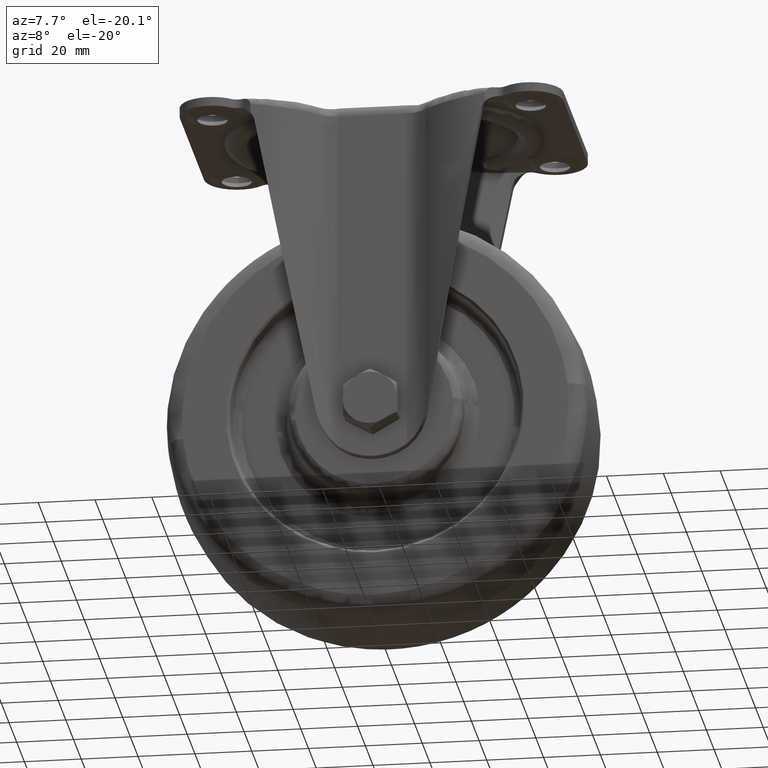
[diagram: clean part render]
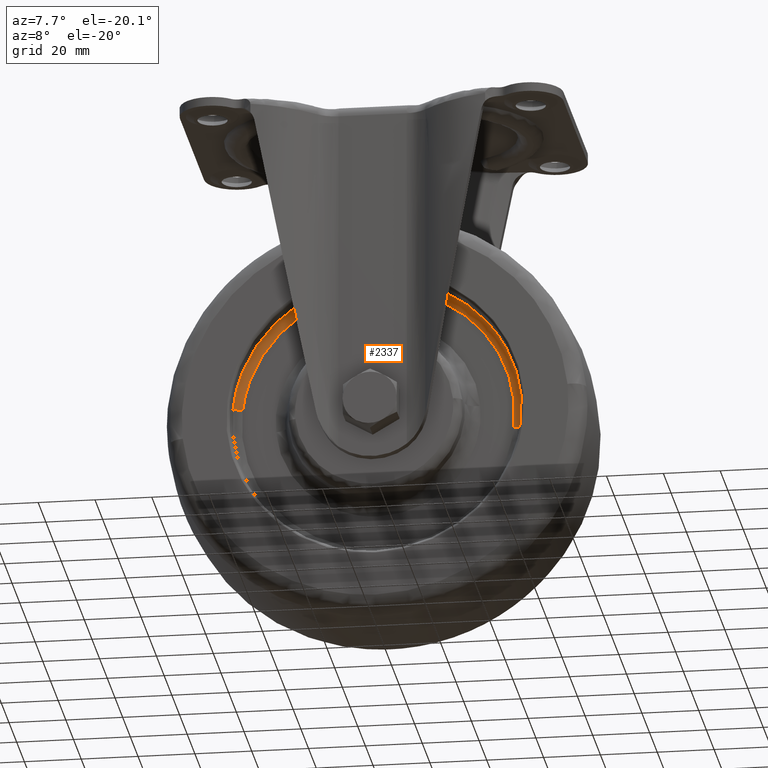
[diagram: same view with one face highlighted and labeled with its STEP entity id]
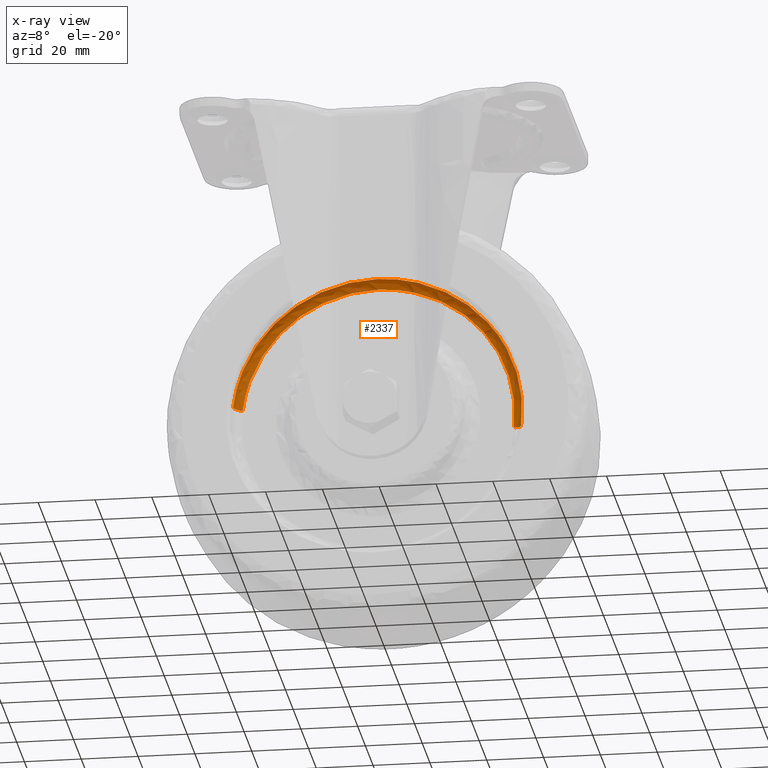
[diagram: x-ray of the same camera — body ghosted, the highlighted face saturated]
A machine part, auxiliary view. The second image highlights one B-rep face of the part: STEP entity #2337.
The next image is the same camera in x-ray: the body ghosted, the highlighted face saturated — about 0% of this face is hidden behind the body in this view.
In plain terms, the highlighted face is a freeform B-spline surface patch.
Its self-contained STEP definition (entity closure, byte-faithful):
#2016=CARTESIAN_POINT('',(38.781317866123182,-17.217746209239099,-78.877625453724022));
#2017=VERTEX_POINT('',#2016);
#2023=CARTESIAN_POINT('',(50.674978645418683,-17.217746208980561,-117.755766699625800));
#2024=VERTEX_POINT('',#2023);
#2025=CARTESIAN_POINT('',(50.674978645418676,-17.217746208980561,-117.755766699625840));
#2026=CARTESIAN_POINT('',(51.000806964344221,-17.217746208994033,-114.887105760911650));
#2027=CARTESIAN_POINT('',(51.000806964345429,-17.217746209009121,-111.999999999995000));
#2028=CARTESIAN_POINT('',(51.000806964353281,-17.217746209107428,-93.184808962524400));
#2029=CARTESIAN_POINT('',(38.781317866123167,-17.217746209239092,-78.877625453724022));
#2037=(BOUNDED_CURVE()B_SPLINE_CURVE(2,(#2025,#2026,#2027,#2028,#2029),.UNSPECIFIED.,.F.,.U.)B_SPLINE_CURVE_WITH_KNOTS((3,2,3),(0.230444236556647,0.250000000000000,0.363143161349320),.UNSPECIFIED.)CURVE()GEOMETRIC_REPRESENTATION_ITEM()RATIONAL_B_SPLINE_CURVE((0.957762333073472,0.977088997994887,1.0,0.867444541142671,0.854871031639166))REPRESENTATION_ITEM(''));
#2038=EDGE_CURVE('',#2024,#2017,#2037,.T.);
#2074=CARTESIAN_POINT('',(-50.674978645418683,-17.217746208980561,-106.244233300374200));
#2075=VERTEX_POINT('',#2074);
#2091=CARTESIAN_POINT('',(0.0,-17.217746209512299,-60.999193035606901));
#2092=VERTEX_POINT('',#2091);
#2093=CARTESIAN_POINT('',(0.0,-17.217746209512299,-60.999193035606901));
#2094=CARTESIAN_POINT('',(-45.535955343601813,-17.217746209246442,-60.999193035609728));
#2095=CARTESIAN_POINT('',(-50.674978645418676,-17.217746208980561,-106.244233300374150));
#2103=(BOUNDED_CURVE()B_SPLINE_CURVE(2,(#2093,#2094,#2095),.UNSPECIFIED.,.F.,.U.)B_SPLINE_CURVE_WITH_KNOTS((3,3),(0.500000000000000,0.730444236556647),.UNSPECIFIED.)CURVE()GEOMETRIC_REPRESENTATION_ITEM()RATIONAL_B_SPLINE_CURVE((1.0,0.730017783191660,0.957762333073472))REPRESENTATION_ITEM(''));
#2104=EDGE_CURVE('',#2092,#2075,#2103,.T.);
#2106=CARTESIAN_POINT('',(38.781317866123167,-17.217746209239092,-78.877625453724022));
#2107=CARTESIAN_POINT('',(23.511694051473199,-17.217746209403124,-60.999193035607043));
#2108=CARTESIAN_POINT('',(0.0,-17.217746209512299,-60.999193035606901));
#2116=(BOUNDED_CURVE()B_SPLINE_CURVE(2,(#2106,#2107,#2108),.UNSPECIFIED.,.F.,.U.)B_SPLINE_CURVE_WITH_KNOTS((3,3),(0.363143161349320,0.500000000000000),.UNSPECIFIED.)CURVE()GEOMETRIC_REPRESENTATION_ITEM()RATIONAL_B_SPLINE_CURVE((0.854871031639166,0.839662240043876,1.0))REPRESENTATION_ITEM(''));
#2117=EDGE_CURVE('',#2017,#2092,#2116,.T.);
#2249=CARTESIAN_POINT('',(47.509492396721946,-14.506617217207429,-117.396224360874190));
#2250=CARTESIAN_POINT('',(52.905716757596160,-14.506617217207427,-69.886731964152276));
#2251=CARTESIAN_POINT('',(5.396224360874210,-14.506617217207429,-64.490507603278061));
#2252=CARTESIAN_POINT('',(-42.113268035847732,-14.506617217207427,-59.094283242403854));
#2253=CARTESIAN_POINT('',(-47.509492396721946,-14.506617217207429,-106.603775639125790));
#2254=CARTESIAN_POINT('',(50.600432021131596,-14.299657681085124,-117.747299543070450));
#2255=CARTESIAN_POINT('',(56.347731564202043,-14.299657681085117,-67.146867521938859));
#2256=CARTESIAN_POINT('',(5.747299543070463,-14.299657681085124,-61.399567978868419));
#2257=CARTESIAN_POINT('',(-44.853132478061106,-14.299657681085117,-55.652268435797950));
#2258=CARTESIAN_POINT('',(-50.600432021131596,-14.299657681085124,-106.252700456929530));
#2259=CARTESIAN_POINT('',(50.687035896553013,-17.416129533051269,-117.757136186627790));
#2260=CARTESIAN_POINT('',(56.444172083180788,-17.416129533051272,-67.070100290074777));
#2261=CARTESIAN_POINT('',(5.757136186627773,-17.416129533051269,-61.312964103447001));
#2262=CARTESIAN_POINT('',(-44.929899709925238,-17.416129533051272,-55.555827916819240));
#2263=CARTESIAN_POINT('',(-50.687035896553013,-17.416129533051269,-106.242863813372220));
#2271=(BOUNDED_SURFACE()B_SPLINE_SURFACE(2,2,((#2249,#2254,#2259),(#2250,#2255,#2260),(#2251,#2256,#2261),(#2252,#2257,#2262),(#2253,#2258,#2263)),.UNSPECIFIED.,.F.,.F.,.U.)B_SPLINE_SURFACE_WITH_KNOTS((3,2,3),(3,3),(0.0,84.521009302344851,169.042018604689700),(0.0,5.106318909271119),.UNSPECIFIED.)GEOMETRIC_REPRESENTATION_ITEM()RATIONAL_B_SPLINE_SURFACE(((0.912012811584580,0.633193765312542,0.914398514358682),(0.644890443600466,0.447735605257542,0.646577390209928),(0.912012811584580,0.633193765312542,0.914398514358682),(0.644890443600466,0.447735605257542,0.646577390209928),(0.912012811584580,0.633193765312542,0.914398514358682)))REPRESENTATION_ITEM('')SURFACE());
#2272=CARTESIAN_POINT('',(47.707367103017503,-14.500000000000000,-117.418699371480000));
#2273=VERTEX_POINT('',#2272);
#2274=CARTESIAN_POINT('',(0.0,-14.500000000000000,-63.985885654165990));
#2275=VERTEX_POINT('',#2274);
#2276=CARTESIAN_POINT('',(47.707367103017496,-14.500000000000005,-117.418699371480020));
#2277=CARTESIAN_POINT('',(48.014114369693807,-14.500000000000002,-114.718032018334470));
#2278=CARTESIAN_POINT('',(48.014114369000957,-14.500000000000000,-112.000000002631300));
#2279=CARTESIAN_POINT('',(48.014114356761752,-14.500000000000000,-63.985885655407188));
#2280=CARTESIAN_POINT('',(0.0,-14.500000000000000,-63.985885654165990));
#2288=(BOUNDED_CURVE()B_SPLINE_CURVE(2,(#2276,#2277,#2278,#2279,#2280),.UNSPECIFIED.,.F.,.U.)B_SPLINE_CURVE_WITH_KNOTS((3,2,3),(0.230444236554066,0.250000000000000,0.500000000000000),.UNSPECIFIED.)CURVE()GEOMETRIC_REPRESENTATION_ITEM()RATIONAL_B_SPLINE_CURVE((0.957762333068371,0.977088997991864,1.0,0.707106781186548,1.0))REPRESENTATION_ITEM(''));
#2289=EDGE_CURVE('',#2273,#2275,#2288,.T.);
#2290=ORIENTED_EDGE('',*,*,#2289,.F.);
#2291=CARTESIAN_POINT('',(47.707367103017503,-14.500000000000004,-117.418699371480070));
#2292=CARTESIAN_POINT('',(50.419782167157372,-14.500000022417396,-117.726780967178740));
#2293=CARTESIAN_POINT('',(50.674978645418676,-17.217746208980561,-117.755766699625780));
#2301=(BOUNDED_CURVE()B_SPLINE_CURVE(2,(#2291,#2292,#2293),.UNSPECIFIED.,.F.,.U.)B_SPLINE_CURVE_WITH_KNOTS((3,3),(-1.710977883070592,-0.282328048341705),.UNSPECIFIED.)CURVE()GEOMETRIC_REPRESENTATION_ITEM()RATIONAL_B_SPLINE_CURVE((0.887843632189395,0.657471283978935,0.890012656481643))REPRESENTATION_ITEM(''));
#2302=EDGE_CURVE('',#2273,#2024,#2301,.T.);
#2303=ORIENTED_EDGE('',*,*,#2302,.T.);
#2304=ORIENTED_EDGE('',*,*,#2038,.T.);
#2305=ORIENTED_EDGE('',*,*,#2117,.T.);
#2306=ORIENTED_EDGE('',*,*,#2104,.T.);
#2307=CARTESIAN_POINT('',(-47.707367103017518,-14.500000000000000,-106.581300628520000));
#2308=VERTEX_POINT('',#2307);
#2309=CARTESIAN_POINT('',(-47.707367103017525,-14.500000000000005,-106.581300628519980));
#2310=CARTESIAN_POINT('',(-50.419782167157365,-14.500000022417410,-106.273219032821250));
#2311=CARTESIAN_POINT('',(-50.674978645418683,-17.217746208980564,-106.244233300374160));
#2319=(BOUNDED_CURVE()B_SPLINE_CURVE(2,(#2309,#2310,#2311),.UNSPECIFIED.,.F.,.U.)B_SPLINE_CURVE_WITH_KNOTS((3,3),(-1.710977883070588,-0.282328048341706),.UNSPECIFIED.)CURVE()GEOMETRIC_REPRESENTATION_ITEM()RATIONAL_B_SPLINE_CURVE((0.887843632189394,0.657471283978935,0.890012656481642))REPRESENTATION_ITEM(''));
#2320=EDGE_CURVE('',#2308,#2075,#2319,.T.);
#2321=ORIENTED_EDGE('',*,*,#2320,.F.);
#2322=CARTESIAN_POINT('',(0.0,-14.500000000000000,-63.985885654165990));
#2323=CARTESIAN_POINT('',(-42.869293594370035,-14.500000000000000,-63.985885652775863));
#2324=CARTESIAN_POINT('',(-47.707367103017525,-14.500000000000002,-106.581300628519980));
#2332=(BOUNDED_CURVE()B_SPLINE_CURVE(2,(#2322,#2323,#2324),.UNSPECIFIED.,.F.,.U.)B_SPLINE_CURVE_WITH_KNOTS((3,3),(0.500000000000000,0.730444236554066),.UNSPECIFIED.)CURVE()GEOMETRIC_REPRESENTATION_ITEM()RATIONAL_B_SPLINE_CURVE((1.0,0.730017783194683,0.957762333068372))REPRESENTATION_ITEM(''));
#2333=EDGE_CURVE('',#2275,#2308,#2332,.T.);
#2334=ORIENTED_EDGE('',*,*,#2333,.F.);
#2335=EDGE_LOOP('',(#2290,#2303,#2304,#2305,#2306,#2321,#2334));
#2336=FACE_OUTER_BOUND('',#2335,.T.);
#2337=ADVANCED_FACE('',(#2336),#2271,.F.);